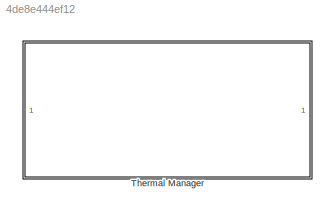
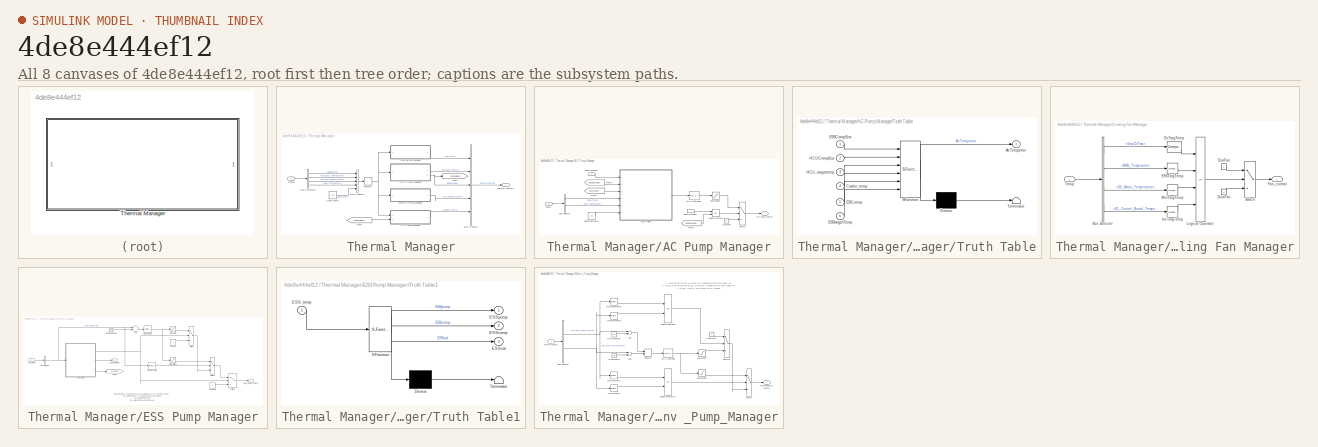
[diagram: thumbnail index - all 8 canvases of the model, root first then tree order]
MODEL slx_4de8e444ef12
KIND library
CONFIG AbsTol = auto
CONFIG EnableMultiTasking = off
CONFIG FixedStep = auto
CONFIG MaxStep = auto
CONFIG MinStep = auto
CONFIG RelTol = 1e-3
CONFIG SampleTimeConstraint = Unconstrained
CONFIG Solver = VariableStepAuto
CONFIG SolverName = VariableStepAuto
CONFIG StartTime = 0.0
CONFIG StopTime = 10.0
BLOCK [SubSystem] Thermal Manager
  Ports = [1, 1]
  RequestExecContextInheritance = off
  Variant = off
BLOCK [SubSystem] Thermal Manager/AC Pump Manager
  Ports = [2, 1]
  RequestExecContextInheritance = off
  Variant = off
BLOCK [Outport] Thermal Manager/AC Pump Manager/ACComp_control
  IconDisplay = Port number
BLOCK [BusSelector] Thermal Manager/AC Pump Manager/Bus Selector
  OutputAsBus = off
  OutputSignals = Cabin_Temp,BMS_Temperatur
  Ports = [1, 2]
BLOCK [Constant] Thermal Manager/AC Pump Manager/Constant
  Value = 0
BLOCK [Inport] Thermal Manager/AC Pump Manager/ESSCompEna
  IconDisplay = Port number
  Port = 2
BLOCK [InportShadow] Thermal Manager/AC Pump Manager/ESSCompEna1
  IconDisplay = Port number
  Port = 2
BLOCK [Constant] Thermal Manager/AC Pump Manager/ESStargetTemp
  Value = 23
BLOCK [From] Thermal Manager/AC Pump Manager/From1
  GotoTag = HCU_targettemp
BLOCK [From] Thermal Manager/AC Pump Manager/From4
  GotoTag = HCUCompEna
BLOCK [From] Thermal Manager/AC Pump Manager/From5
  GotoTag = HCUCompEna
BLOCK [Logic] Thermal Manager/AC Pump Manager/Logical Operator
  AllPortsSameDT = off
  Operator = OR
  OutDataTypeStr = boolean
  Ports = [2, 1]
BLOCK [Reference] Thermal Manager/AC Pump Manager/PID Controller1  REF=simulink/Continuous/PID Controller
  Ports = [1, 1]
  SourceBlock = simulink/Continuous/PID Controller
  SourceProductBaseCode = SL
  SourceProductName = Simulink
  SourceType = PID 1dof
BLOCK [Saturate] Thermal Manager/AC Pump Manager/Saturation1
  InputPortMap = u0
  LowerLimit = 0.094
  Ports = [1, 1]
  UpperLimit = 1
BLOCK [Switch] Thermal Manager/AC Pump Manager/Switch
  Criteria = u2 ~= 0
  InputSameDT = off
  SaturateOnIntegerOverflow = off
BLOCK [Inport] Thermal Manager/AC Pump Manager/Temp
  IconDisplay = Port number
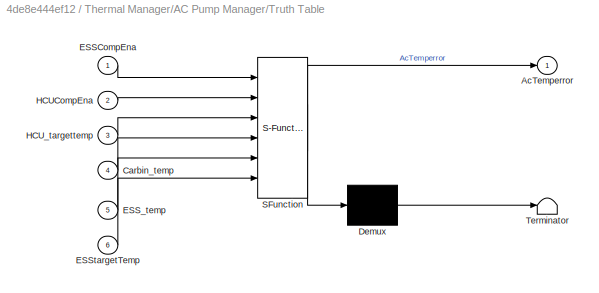
BLOCK [SubSystem] Thermal Manager/AC Pump Manager/Truth Table
  ErrorFcn = Stateflow.Translate.translate
  PermitHierarchicalResolution = ExplicitOnly
  Ports = [6, 1]
  RequestExecContextInheritance = off
  SFBlockType = Truth Table
  TreatAsAtomicUnit = on
  Variant = off
BLOCK [Demux] Thermal Manager/AC Pump Manager/Truth Table/ Demux 
  Outputs = 1
  Ports = [1, 1]
BLOCK [S-Function] Thermal Manager/AC Pump Manager/Truth Table/ SFunction 
  EnableBusSupport = off
  FunctionName = sf_sfun
  PortCounts = [6 2]
  Ports = [6, 2]
  SFcnIsStateOwnerBlock = off
  SFunctionDeploymentMode = off
  Tag = Stateflow S-Function lib_ThermalManager 3
BLOCK [Terminator] Thermal Manager/AC Pump Manager/Truth Table/ Terminator 
BLOCK [Outport] Thermal Manager/AC Pump Manager/Truth Table/AcTemperror
  IconDisplay = Port number
BLOCK [Inport] Thermal Manager/AC Pump Manager/Truth Table/Carbin_temp
  IconDisplay = Port number
  Port = 4
BLOCK [Inport] Thermal Manager/AC Pump Manager/Truth Table/ESSCompEna
  IconDisplay = Port number
BLOCK [Inport] Thermal Manager/AC Pump Manager/Truth Table/ESS_temp
  IconDisplay = Port number
  Port = 5
BLOCK [Inport] Thermal Manager/AC Pump Manager/Truth Table/ESStargetTemp
  IconDisplay = Port number
  Port = 6
BLOCK [Inport] Thermal Manager/AC Pump Manager/Truth Table/HCUCompEna
  IconDisplay = Port number
  Port = 2
BLOCK [Inport] Thermal Manager/AC Pump Manager/Truth Table/HCU_targettemp
  IconDisplay = Port number
  Port = 3
BLOCK [BusCreator] Thermal Manager/Bus Creator1
  DisplayOption = bar
  InheritFromInputs = on
  Inputs = 5
  Ports = [5, 1]
BLOCK [BusCreator] Thermal Manager/Bus Creator2
  DisplayOption = bar
  InheritFromInputs = on
  Inputs = 5
  Ports = [5, 1]
BLOCK [BusSelector] Thermal Manager/Bus Selector5
  OutputAsBus = off
  OutputSignals = from_CAN.fromEBCAN.from_ECM.EngCltTmp,from_CAN.fromHV_CAN.from_MCU.D3_Motor_Temperature,from_CAN.fromHV_CAN.from_MCU.D1_Control_Board_Temperature,from_CAN.fromHV_CAN.from_BMSHybrid.BMS_Temperatur
  Ports = [1, 4]
BLOCK [Constant] Thermal Manager/Cabin_Temp
  Value = 25
BLOCK [SubSystem] Thermal Manager/Cooling Fan Manager
  Ports = [1, 1]
  RequestExecContextInheritance = off
  Variant = off
BLOCK [BusSelector] Thermal Manager/Cooling Fan Manager/Bus Selector
  OutputAsBus = off
  OutputSignals = EngCltTmp,BMS_Temperatur,D3_Motor_Temperature,D1_Control_Board_Temperature
  Ports = [1, 4]
BLOCK [Constant] Thermal Manager/Cooling Fan Manager/DisaFan
  Value = 0
BLOCK [Reference] Thermal Manager/Cooling Fan Manager/ESSTargTemp  REF=simulink/Logic and Bit
Operations/Compare
To Constant
  Ports = [1, 1]
  SourceBlock = simulink/Logic and Bit\nOperations/Compare\nTo Constant
  SourceProductBaseCode = SL
  SourceProductName = Simulink
  SourceType = Compare To Constant
BLOCK [Reference] Thermal Manager/Cooling Fan Manager/EnTargTemp  REF=simulink/Logic and Bit
Operations/Compare
To Constant
  Ports = [1, 1]
  SourceBlock = simulink/Logic and Bit\nOperations/Compare\nTo Constant
  SourceProductBaseCode = SL
  SourceProductName = Simulink
  SourceType = Compare To Constant
BLOCK [Constant] Thermal Manager/Cooling Fan Manager/EnaFan
BLOCK [Outport] Thermal Manager/Cooling Fan Manager/Fan_control
  IconDisplay = Port number
BLOCK [Reference] Thermal Manager/Cooling Fan Manager/InvTargTemp  REF=simulink/Logic and Bit
Operations/Compare
To Constant
  Ports = [1, 1]
  SourceBlock = simulink/Logic and Bit\nOperations/Compare\nTo Constant
  SourceProductBaseCode = SL
  SourceProductName = Simulink
  SourceType = Compare To Constant
BLOCK [Logic] Thermal Manager/Cooling Fan Manager/Logical Operator
  AllPortsSameDT = off
  Inputs = 4
  Operator = OR
  OutDataTypeStr = boolean
  Ports = [4, 1]
BLOCK [Reference] Thermal Manager/Cooling Fan Manager/MorTargTemp  REF=simulink/Logic and Bit
Operations/Compare
To Constant
  Ports = [1, 1]
  SourceBlock = simulink/Logic and Bit\nOperations/Compare\nTo Constant
  SourceProductBaseCode = SL
  SourceProductName = Simulink
  SourceType = Compare To Constant
BLOCK [Switch] Thermal Manager/Cooling Fan Manager/Switch
  Criteria = u2 ~= 0
  InputSameDT = off
  SaturateOnIntegerOverflow = off
BLOCK [Inport] Thermal Manager/Cooling Fan Manager/Temp
  IconDisplay = Port number
BLOCK [SubSystem] Thermal Manager/ESS Pump Manager
  Ports = [1, 2]
  RequestExecContextInheritance = off
  Variant = off
BLOCK [Sum] Thermal Manager/ESS Pump Manager/Add
  InputSameDT = off
  Inputs = +-
  OutDataTypeStr = Inherit: Inherit via internal rule
  Ports = [2, 1]
  SaturateOnIntegerOverflow = off
BLOCK [BusSelector] Thermal Manager/ESS Pump Manager/Bus Selector
  OutputAsBus = off
  OutputSignals = BMS_Temperatur
  Ports = [1, 1]
BLOCK [Constant] Thermal Manager/ESS Pump Manager/Constant
  Value = 0
BLOCK [Constant] Thermal Manager/ESS Pump Manager/Constant1
  Value = 0
BLOCK [Outport] Thermal Manager/ESS Pump Manager/ESSCompEna
  IconDisplay = Port number
  Port = 2
BLOCK [Reference] Thermal Manager/ESS Pump Manager/ESSMaxTemp  REF=simulink/Logic and Bit
Operations/Compare
To Constant
  Ports = [1, 1]
  SourceBlock = simulink/Logic and Bit\nOperations/Compare\nTo Constant
  SourceProductBaseCode = SL
  SourceProductName = Simulink
  SourceType = Compare To Constant
BLOCK [Outport] Thermal Manager/ESS Pump Manager/ESS_pump_control
  IconDisplay = Port number
BLOCK [Inport] Thermal Manager/ESS Pump Manager/ESS_temp
  IconDisplay = Port number
BLOCK [Constant] Thermal Manager/ESS Pump Manager/ESStargetTemp
  Value = 25
BLOCK [Goto] Thermal Manager/ESS Pump Manager/Goto2
  GotoTag = ESSValEna
  TagVisibility = global
BLOCK [Reference] Thermal Manager/ESS Pump Manager/PID Controller  REF=simulink/Continuous/PID Controller
  Ports = [1, 1]
  SourceBlock = simulink/Continuous/PID Controller
  SourceProductBaseCode = SL
  SourceProductName = Simulink
  SourceType = PID 1dof
BLOCK [Saturate] Thermal Manager/ESS Pump Manager/Saturation
  InputPortMap = u0
  LowerLimit = 0.13
  Ports = [1, 1]
  UpperLimit = 0.85
BLOCK [Saturate] Thermal Manager/ESS Pump Manager/Saturation1
  InputPortMap = u0
  LowerLimit = 0.86
  Ports = [1, 1]
  UpperLimit = 0.97
BLOCK [Switch] Thermal Manager/ESS Pump Manager/Switch
  Criteria = u2 ~= 0
  InputSameDT = off
  SaturateOnIntegerOverflow = off
BLOCK [Switch] Thermal Manager/ESS Pump Manager/Switch1
  Criteria = u2 ~= 0
  InputSameDT = off
  SaturateOnIntegerOverflow = off
  Threshold = 1
BLOCK [Switch] Thermal Manager/ESS Pump Manager/Switch2
  Criteria = u2 ~= 0
  InputSameDT = off
  SaturateOnIntegerOverflow = off
  Threshold = c
BLOCK [SubSystem] Thermal Manager/ESS Pump Manager/Truth Table1
  ErrorFcn = Stateflow.Translate.translate
  PermitHierarchicalResolution = ExplicitOnly
  Ports = [1, 3]
  RequestExecContextInheritance = off
  SFBlockType = Truth Table
  TreatAsAtomicUnit = on
  Variant = off
BLOCK [Demux] Thermal Manager/ESS Pump Manager/Truth Table1/ Demux 
  Outputs = 1
  Ports = [1, 1]
BLOCK [S-Function] Thermal Manager/ESS Pump Manager/Truth Table1/ SFunction 
  EnableBusSupport = off
  FunctionName = sf_sfun
  PortCounts = [1 4]
  Ports = [1, 4]
  SFcnIsStateOwnerBlock = off
  SFunctionDeploymentMode = off
  Tag = Stateflow S-Function lib_ThermalManager 4
BLOCK [Terminator] Thermal Manager/ESS Pump Manager/Truth Table1/ Terminator 
BLOCK [Inport] Thermal Manager/ESS Pump Manager/Truth Table1/ESS_temp
  IconDisplay = Port number
BLOCK [Outport] Thermal Manager/ESS Pump Manager/Truth Table1/ESScomp
  IconDisplay = Port number
  Port = 2
BLOCK [Outport] Thermal Manager/ESS Pump Manager/Truth Table1/ESSpump
  IconDisplay = Port number
BLOCK [Outport] Thermal Manager/ESS Pump Manager/Truth Table1/ESSval
  IconDisplay = Port number
  Port = 3
BLOCK [From] Thermal Manager/From
  GotoTag = ESSCompEna
  TagVisibility = global
BLOCK [Goto] Thermal Manager/Goto
  GotoTag = ESSCompEna
BLOCK [Memory] Thermal Manager/Memory
  X0 = 25
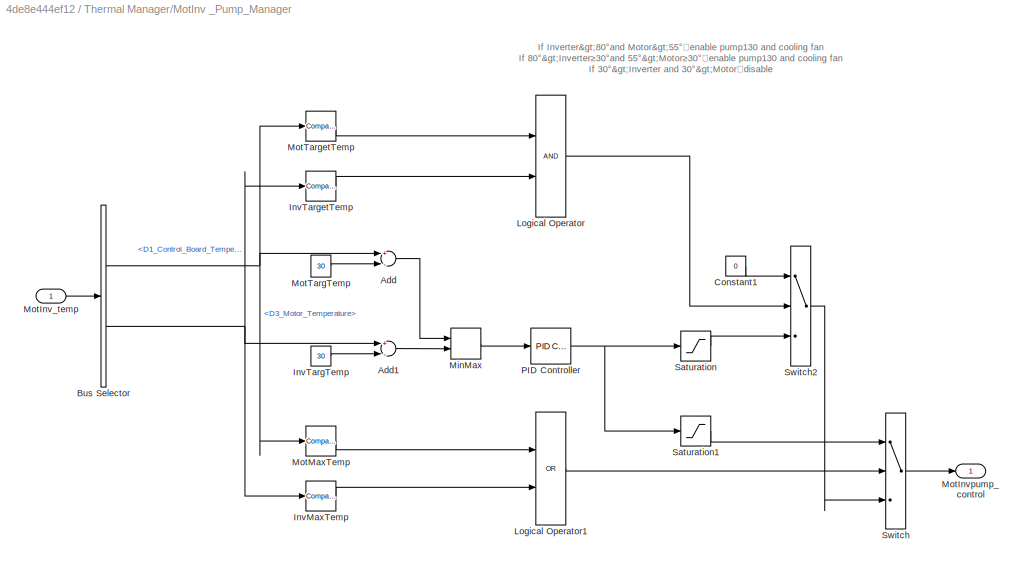
BLOCK [SubSystem] Thermal Manager/MotInv _Pump_Manager
  Ports = [1, 1]
  RequestExecContextInheritance = off
  Variant = off
BLOCK [Sum] Thermal Manager/MotInv _Pump_Manager/Add
  InputSameDT = off
  Inputs = +-
  OutDataTypeStr = Inherit: Inherit via internal rule
  Ports = [2, 1]
  SaturateOnIntegerOverflow = off
BLOCK [Sum] Thermal Manager/MotInv _Pump_Manager/Add1
  InputSameDT = off
  Inputs = +-
  OutDataTypeStr = Inherit: Inherit via internal rule
  Ports = [2, 1]
  SaturateOnIntegerOverflow = off
BLOCK [BusSelector] Thermal Manager/MotInv _Pump_Manager/Bus Selector
  OutputAsBus = off
  OutputSignals = D3_Motor_Temperature,D1_Control_Board_Temperature
  Ports = [1, 2]
BLOCK [Constant] Thermal Manager/MotInv _Pump_Manager/Constant1
  Value = 0
BLOCK [Reference] Thermal Manager/MotInv _Pump_Manager/InvMaxTemp  REF=simulink/Logic and Bit
Operations/Compare
To Constant
  Ports = [1, 1]
  SourceBlock = simulink/Logic and Bit\nOperations/Compare\nTo Constant
  SourceProductBaseCode = SL
  SourceProductName = Simulink
  SourceType = Compare To Constant
BLOCK [Constant] Thermal Manager/MotInv _Pump_Manager/InvTargTemp
  Value = 30
BLOCK [Reference] Thermal Manager/MotInv _Pump_Manager/InvTargetTemp  REF=simulink/Logic and Bit
Operations/Compare
To Constant
  Ports = [1, 1]
  SourceBlock = simulink/Logic and Bit\nOperations/Compare\nTo Constant
  SourceProductBaseCode = SL
  SourceProductName = Simulink
  SourceType = Compare To Constant
BLOCK [Logic] Thermal Manager/MotInv _Pump_Manager/Logical Operator
  AllPortsSameDT = off
  OutDataTypeStr = boolean
  Ports = [2, 1]
BLOCK [Logic] Thermal Manager/MotInv _Pump_Manager/Logical Operator1
  AllPortsSameDT = off
  Operator = OR
  OutDataTypeStr = boolean
  Ports = [2, 1]
BLOCK [MinMax] Thermal Manager/MotInv _Pump_Manager/MinMax
  Function = max
  InputSameDT = off
  Inputs = 2
  Ports = [2, 1]
  SaturateOnIntegerOverflow = off
BLOCK [Inport] Thermal Manager/MotInv _Pump_Manager/MotInv_temp
  IconDisplay = Port number
BLOCK [Outport] Thermal Manager/MotInv _Pump_Manager/MotInvpump_control
  IconDisplay = Port number
BLOCK [Reference] Thermal Manager/MotInv _Pump_Manager/MotMaxTemp  REF=simulink/Logic and Bit
Operations/Compare
To Constant
  Ports = [1, 1]
  SourceBlock = simulink/Logic and Bit\nOperations/Compare\nTo Constant
  SourceProductBaseCode = SL
  SourceProductName = Simulink
  SourceType = Compare To Constant
BLOCK [Constant] Thermal Manager/MotInv _Pump_Manager/MotTargTemp
  Value = 30
BLOCK [Reference] Thermal Manager/MotInv _Pump_Manager/MotTargetTemp  REF=simulink/Logic and Bit
Operations/Compare
To Constant
  Ports = [1, 1]
  SourceBlock = simulink/Logic and Bit\nOperations/Compare\nTo Constant
  SourceProductBaseCode = SL
  SourceProductName = Simulink
  SourceType = Compare To Constant
BLOCK [Reference] Thermal Manager/MotInv _Pump_Manager/PID Controller  REF=simulink/Continuous/PID Controller
  Ports = [1, 1]
  SourceBlock = simulink/Continuous/PID Controller
  SourceProductBaseCode = SL
  SourceProductName = Simulink
  SourceType = PID 1dof
BLOCK [Saturate] Thermal Manager/MotInv _Pump_Manager/Saturation
  InputPortMap = u0
  LowerLimit = 0.13
  Ports = [1, 1]
  UpperLimit = 0.85
BLOCK [Saturate] Thermal Manager/MotInv _Pump_Manager/Saturation1
  InputPortMap = u0
  LowerLimit = 0.86
  Ports = [1, 1]
  UpperLimit = 0.97
BLOCK [Switch] Thermal Manager/MotInv _Pump_Manager/Switch
  Criteria = u2 ~= 0
  InputSameDT = off
  SaturateOnIntegerOverflow = off
  Threshold = 1
BLOCK [Switch] Thermal Manager/MotInv _Pump_Manager/Switch2
  Criteria = u2 ~= 0
  InputSameDT = off
  SaturateOnIntegerOverflow = off
  Threshold = 1
BLOCK [Inport] Thermal Manager/Sensor
  IconDisplay = Port number
BLOCK [Outport] Thermal Manager/Thermal_controls
  IconDisplay = Port number
ANNOTATION Thermal Manager/ESS Pump Manager: If ESS temp>35°，enable pump100 and cooling fan and 2-way valve then enable AC-compressor If 35°>ESStemp≥23°，enable pump100 and cooling fan If 23°>ESS temp disable If 15°>ESS temp, enable heat coolant
ANNOTATION Thermal Manager/MotInv _Pump_Manager: If Inverter>80°and Motor>55°，enable pump130 and cooling fan If 80°>Inverter≥30°and 55°>Motor≥30°，enable pump130 and cooling fan If 30°>Inverter and 30°>Motor，disable
LINE Thermal Manager/AC Pump Manager/Bus Selector:1 -> Thermal Manager/AC Pump Manager/Truth Table:4
LINE Thermal Manager/AC Pump Manager/Bus Selector:2 -> Thermal Manager/AC Pump Manager/Truth Table:5
LINE Thermal Manager/AC Pump Manager/Constant:1 -> Thermal Manager/AC Pump Manager/Switch:3
LINE Thermal Manager/AC Pump Manager/ESSCompEna1:1 -> Thermal Manager/AC Pump Manager/Logical Operator:1
LINE Thermal Manager/AC Pump Manager/ESSCompEna:1 -> Thermal Manager/AC Pump Manager/Truth Table:1
LINE Thermal Manager/AC Pump Manager/ESStargetTemp:1 -> Thermal Manager/AC Pump Manager/Truth Table:6
LINE Thermal Manager/AC Pump Manager/From1:1 -> Thermal Manager/AC Pump Manager/Truth Table:3
LINE Thermal Manager/AC Pump Manager/From4:1 -> Thermal Manager/AC Pump Manager/Truth Table:2
LINE Thermal Manager/AC Pump Manager/From5:1 -> Thermal Manager/AC Pump Manager/Logical Operator:2
LINE Thermal Manager/AC Pump Manager/Logical Operator:1 -> Thermal Manager/AC Pump Manager/Switch:2
LINE Thermal Manager/AC Pump Manager/PID Controller1:1 -> Thermal Manager/AC Pump Manager/Saturation1:1
LINE Thermal Manager/AC Pump Manager/Saturation1:1 -> Thermal Manager/AC Pump Manager/Switch:1
LINE Thermal Manager/AC Pump Manager/Switch:1 -> Thermal Manager/AC Pump Manager/ACComp_control:1
LINE Thermal Manager/AC Pump Manager/Temp:1 -> Thermal Manager/AC Pump Manager/Bus Selector:1
LINE Thermal Manager/AC Pump Manager/Truth Table:1 -> Thermal Manager/AC Pump Manager/PID Controller1:1
LINE Thermal Manager/AC Pump Manager:1 -> Thermal Manager/Bus Creator1:5
LINE Thermal Manager/Bus Creator1:1 -> Thermal Manager/Thermal_controls:1
LINE Thermal Manager/Bus Creator2:1 -> Thermal Manager/Memory:1
LINE Thermal Manager/Bus Selector5:1 -> Thermal Manager/Bus Creator2:1
LINE Thermal Manager/Bus Selector5:2 -> Thermal Manager/Bus Creator2:2
LINE Thermal Manager/Bus Selector5:3 -> Thermal Manager/Bus Creator2:3
LINE Thermal Manager/Bus Selector5:4 -> Thermal Manager/Bus Creator2:4
LINE Thermal Manager/Cabin_Temp:1 -> Thermal Manager/Bus Creator2:5
LINE Thermal Manager/Cooling Fan Manager/Bus Selector:1 -> Thermal Manager/Cooling Fan Manager/EnTargTemp:1
LINE Thermal Manager/Cooling Fan Manager/Bus Selector:2 -> Thermal Manager/Cooling Fan Manager/ESSTargTemp:1
LINE Thermal Manager/Cooling Fan Manager/Bus Selector:3 -> Thermal Manager/Cooling Fan Manager/MorTargTemp:1
LINE Thermal Manager/Cooling Fan Manager/Bus Selector:4 -> Thermal Manager/Cooling Fan Manager/InvTargTemp:1
LINE Thermal Manager/Cooling Fan Manager/DisaFan:1 -> Thermal Manager/Cooling Fan Manager/Switch:3
LINE Thermal Manager/Cooling Fan Manager/ESSTargTemp:1 -> Thermal Manager/Cooling Fan Manager/Logical Operator:2
LINE Thermal Manager/Cooling Fan Manager/EnTargTemp:1 -> Thermal Manager/Cooling Fan Manager/Logical Operator:1
LINE Thermal Manager/Cooling Fan Manager/EnaFan:1 -> Thermal Manager/Cooling Fan Manager/Switch:1
LINE Thermal Manager/Cooling Fan Manager/InvTargTemp:1 -> Thermal Manager/Cooling Fan Manager/Logical Operator:4
LINE Thermal Manager/Cooling Fan Manager/Logical Operator:1 -> Thermal Manager/Cooling Fan Manager/Switch:2
LINE Thermal Manager/Cooling Fan Manager/MorTargTemp:1 -> Thermal Manager/Cooling Fan Manager/Logical Operator:3
LINE Thermal Manager/Cooling Fan Manager/Switch:1 -> Thermal Manager/Cooling Fan Manager/Fan_control:1
LINE Thermal Manager/Cooling Fan Manager/Temp:1 -> Thermal Manager/Cooling Fan Manager/Bus Selector:1
LINE Thermal Manager/Cooling Fan Manager:1 -> Thermal Manager/Bus Creator1:1
LINE Thermal Manager/ESS Pump Manager/Add:1 -> Thermal Manager/ESS Pump Manager/PID Controller:1
NET Thermal Manager/ESS Pump Manager/Bus Selector:1 -> Thermal Manager/ESS Pump Manager/Add:1, Thermal Manager/ESS Pump Manager/ESSMaxTemp:1, Thermal Manager/ESS Pump Manager/Truth Table1:1
LINE Thermal Manager/ESS Pump Manager/Constant1:1 -> Thermal Manager/ESS Pump Manager/Switch2:3
LINE Thermal Manager/ESS Pump Manager/Constant:1 -> Thermal Manager/ESS Pump Manager/Switch:3
LINE Thermal Manager/ESS Pump Manager/ESSMaxTemp:1 -> Thermal Manager/ESS Pump Manager/Switch1:2
LINE Thermal Manager/ESS Pump Manager/ESS_temp:1 -> Thermal Manager/ESS Pump Manager/Bus Selector:1
LINE Thermal Manager/ESS Pump Manager/ESStargetTemp:1 -> Thermal Manager/ESS Pump Manager/Add:2
NET Thermal Manager/ESS Pump Manager/PID Controller:1 -> Thermal Manager/ESS Pump Manager/Saturation1:1, Thermal Manager/ESS Pump Manager/Saturation:1
LINE Thermal Manager/ESS Pump Manager/Saturation1:1 -> Thermal Manager/ESS Pump Manager/Switch1:1
LINE Thermal Manager/ESS Pump Manager/Saturation:1 -> Thermal Manager/ESS Pump Manager/Switch:1
LINE Thermal Manager/ESS Pump Manager/Switch1:1 -> Thermal Manager/ESS Pump Manager/Switch2:1
LINE Thermal Manager/ESS Pump Manager/Switch2:1 -> Thermal Manager/ESS Pump Manager/ESS_pump_control:1
LINE Thermal Manager/ESS Pump Manager/Switch:1 -> Thermal Manager/ESS Pump Manager/Switch1:3
NET Thermal Manager/ESS Pump Manager/Truth Table1:1 -> Thermal Manager/ESS Pump Manager/Switch2:2, Thermal Manager/ESS Pump Manager/Switch:2
LINE Thermal Manager/ESS Pump Manager/Truth Table1:2 -> Thermal Manager/ESS Pump Manager/ESSCompEna:1
LINE Thermal Manager/ESS Pump Manager/Truth Table1:3 -> Thermal Manager/ESS Pump Manager/Goto2:1
LINE Thermal Manager/ESS Pump Manager:1 -> Thermal Manager/Bus Creator1:2
NET Thermal Manager/ESS Pump Manager:2 -> Thermal Manager/Bus Creator1:3, Thermal Manager/Goto:1
LINE Thermal Manager/From:1 -> Thermal Manager/AC Pump Manager:2
NET Thermal Manager/Memory:1 -> Thermal Manager/AC Pump Manager:1, Thermal Manager/Cooling Fan Manager:1, Thermal Manager/ESS Pump Manager:1, Thermal Manager/MotInv _Pump_Manager:1
LINE Thermal Manager/MotInv _Pump_Manager/Add1:1 -> Thermal Manager/MotInv _Pump_Manager/MinMax:2
LINE Thermal Manager/MotInv _Pump_Manager/Add:1 -> Thermal Manager/MotInv _Pump_Manager/MinMax:1
NET Thermal Manager/MotInv _Pump_Manager/Bus Selector:1 -> Thermal Manager/MotInv _Pump_Manager/Add:1, Thermal Manager/MotInv _Pump_Manager/MotMaxTemp:1, Thermal Manager/MotInv _Pump_Manager/MotTargetTemp:1
NET Thermal Manager/MotInv _Pump_Manager/Bus Selector:2 -> Thermal Manager/MotInv _Pump_Manager/Add1:1, Thermal Manager/MotInv _Pump_Manager/InvMaxTemp:1, Thermal Manager/MotInv _Pump_Manager/InvTargetTemp:1
LINE Thermal Manager/MotInv _Pump_Manager/Constant1:1 -> Thermal Manager/MotInv _Pump_Manager/Switch2:1
LINE Thermal Manager/MotInv _Pump_Manager/InvMaxTemp:1 -> Thermal Manager/MotInv _Pump_Manager/Logical Operator1:2
LINE Thermal Manager/MotInv _Pump_Manager/InvTargTemp:1 -> Thermal Manager/MotInv _Pump_Manager/Add1:2
LINE Thermal Manager/MotInv _Pump_Manager/InvTargetTemp:1 -> Thermal Manager/MotInv _Pump_Manager/Logical Operator:2
LINE Thermal Manager/MotInv _Pump_Manager/Logical Operator1:1 -> Thermal Manager/MotInv _Pump_Manager/Switch:2
LINE Thermal Manager/MotInv _Pump_Manager/Logical Operator:1 -> Thermal Manager/MotInv _Pump_Manager/Switch2:2
LINE Thermal Manager/MotInv _Pump_Manager/MinMax:1 -> Thermal Manager/MotInv _Pump_Manager/PID Controller:1
LINE Thermal Manager/MotInv _Pump_Manager/MotInv_temp:1 -> Thermal Manager/MotInv _Pump_Manager/Bus Selector:1
LINE Thermal Manager/MotInv _Pump_Manager/MotMaxTemp:1 -> Thermal Manager/MotInv _Pump_Manager/Logical Operator1:1
LINE Thermal Manager/MotInv _Pump_Manager/MotTargTemp:1 -> Thermal Manager/MotInv _Pump_Manager/Add:2
LINE Thermal Manager/MotInv _Pump_Manager/MotTargetTemp:1 -> Thermal Manager/MotInv _Pump_Manager/Logical Operator:1
NET Thermal Manager/MotInv _Pump_Manager/PID Controller:1 -> Thermal Manager/MotInv _Pump_Manager/Saturation1:1, Thermal Manager/MotInv _Pump_Manager/Saturation:1
LINE Thermal Manager/MotInv _Pump_Manager/Saturation1:1 -> Thermal Manager/MotInv _Pump_Manager/Switch:1
LINE Thermal Manager/MotInv _Pump_Manager/Saturation:1 -> Thermal Manager/MotInv _Pump_Manager/Switch2:3
LINE Thermal Manager/MotInv _Pump_Manager/Switch2:1 -> Thermal Manager/MotInv _Pump_Manager/Switch:3
LINE Thermal Manager/MotInv _Pump_Manager/Switch:1 -> Thermal Manager/MotInv _Pump_Manager/MotInvpump_control:1
LINE Thermal Manager/MotInv _Pump_Manager:1 -> Thermal Manager/Bus Creator1:4
LINE Thermal Manager/Sensor:1 -> Thermal Manager/Bus Selector5:1
note: NET lines group one-source signal fan-out (src -> all destinations, sorted); 1:1 wires keep LINE
CHART Thermal Manager/AC Pump Manager/Truth Table states=1 transitions=1
  STATE_LABEL 'tt_blk_kernel'
  STATE_LABEL 'SCRIPT:\nfunction AcTemperror = fcn(ESSCompEna, HCUCompEna, HCU_targettemp, Carbin_temp, ESS_temp, ESStargetTemp)\n\naVarTruthTableCondition_1 = false;\naVarTruthTableCondition_2 = false;\naVarTruthTableCondition_3 = false;\naVarTruthTableCondition_4 = false;\n\n\n% Disable comp\n\naVarTruthTableCondition_1 = logical(ESSCompEna==0 && HCUCompEna==0);\n\n% ESS enable HCU disable\n\naVarTruthTableCondition_2 = logi...<+1412ch>'
CHART Thermal Manager/ESS Pump Manager/Truth Table1 states=1 transitions=1
  STATE_LABEL 'tt_blk_kernel'
  STATE_LABEL 'SCRIPT:\nfunction [ESSpump, ESScomp, ESSval] = fcn(ESS_temp)\n\naVarTruthTableCondition_1 = false;\naVarTruthTableCondition_2 = false;\naVarTruthTableCondition_3 = false;\naVarTruthTableCondition_4 = false;\n\n\n% enable pump and AC compr\n\naVarTruthTableCondition_1 = logical(ESS_temp >= 35);\n\n% enable pump and disable AC compr\n\naVarTruthTableCondition_2 = logical(ESS_temp < 35 && ESS_temp >= 23);\n\n% disabl...<+1276ch>'
